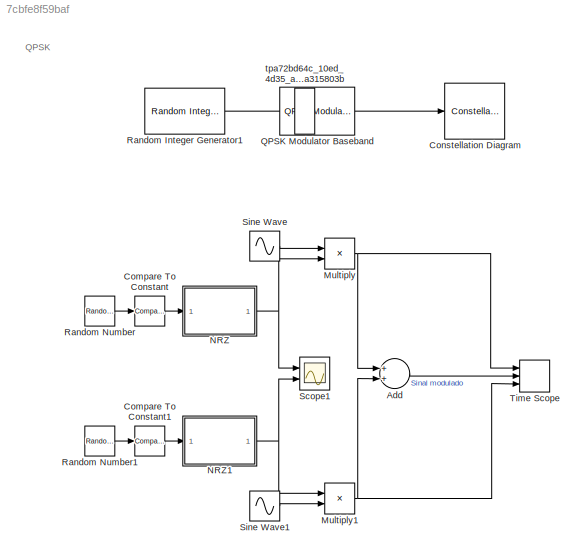
MODEL slx_7cbfe8f59baf
KIND model
CONFIG AbsTol = auto
CONFIG FixedStep = 1e-3
CONFIG MaxStep = auto
CONFIG MinStep = auto
CONFIG RelTol = 1e-3
CONFIG SampleTimeConstraint = Unconstrained
CONFIG Solver = ode3
CONFIG SolverMode = SingleTasking
CONFIG SolverName = ode3
CONFIG StartTime = 0.0
CONFIG StopTime = 1
BLOCK [Sum] Add
  InputSameDT = off
  OutDataTypeStr = Inherit: Inherit via internal rule
  Ports = [2, 1]
  SaturateOnIntegerOverflow = off
BLOCK [Reference] Compare To Constant  REF=simulink/Logic and Bit
Operations/Compare
To Constant
  OutDataTypeStr = boolean
  Ports = [1, 1]
  SourceBlock = simulink/Logic and Bit\nOperations/Compare\nTo Constant
  SourceType = Compare To Constant
  ZeroCross = on
  const = 0.5
  relop = <=
BLOCK [Reference] Compare To Constant1  REF=simulink/Logic and Bit
Operations/Compare
To Constant
  OutDataTypeStr = boolean
  Ports = [1, 1]
  SourceBlock = simulink/Logic and Bit\nOperations/Compare\nTo Constant
  SourceType = Compare To Constant
  ZeroCross = on
  const = 0.5
  relop = <=
BLOCK [ConstellationDiagram] Constellation Diagram
  Ports = [1]
  ScopeSpecificationString = comm.scopes.ConstellationDiagramBlockCfg('CurrentConfiguration', extmgr.ConfigurationSet(extmgr.Configuration('Core','General UI',true),extmgr.Configuration('Core','Source UI',true),extmgr.Configuration('Sources','WiredSimulink',true),extmgr.Configuration('Visuals','Constellation',true,'AxesProperties',struct('Color',[0 0 0],'XColor',[0.686274509803922 0.686274509803922 0.686274509803922],'YColor'...<+740ch>
BLOCK [Product] Multiply
  InputSameDT = off
  OutDataTypeStr = Inherit: Inherit via internal rule
  Ports = [2, 1]
  RndMeth = Floor
  SaturateOnIntegerOverflow = off
BLOCK [Product] Multiply1
  InputSameDT = off
  OutDataTypeStr = Inherit: Inherit via internal rule
  Ports = [2, 1]
  RndMeth = Floor
  SaturateOnIntegerOverflow = off
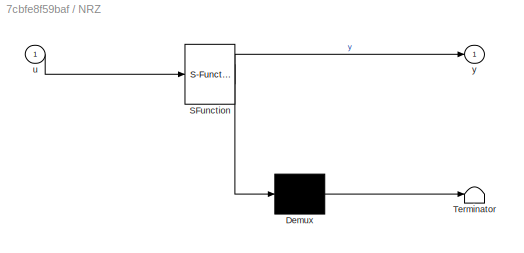
BLOCK [SubSystem] NRZ
  ErrorFcn = Stateflow.Translate.translate
  PermitHierarchicalResolution = ParametersOnly
  Ports = [1, 1]
  RequestExecContextInheritance = off
  SFBlockType = MATLAB Function
  TreatAsAtomicUnit = on
BLOCK [Demux] NRZ/ Demux 
  Outputs = 1
  Ports = [1, 1]
BLOCK [S-Function] NRZ/ SFunction 
  EnableBusSupport = on
  FunctionName = sf_sfun
  PortCounts = [1 2]
  Ports = [1, 2]
  SFunctionDeploymentMode = off
  Tag = Stateflow S-Function QPSK 2
BLOCK [Terminator] NRZ/ Terminator 
BLOCK [Inport] NRZ/u
  IconDisplay = Port number
BLOCK [Outport] NRZ/y
  IconDisplay = Port number
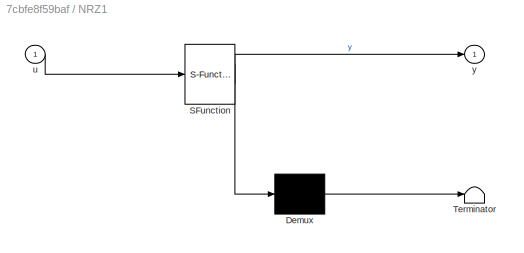
BLOCK [SubSystem] NRZ1
  ErrorFcn = Stateflow.Translate.translate
  PermitHierarchicalResolution = ParametersOnly
  Ports = [1, 1]
  RequestExecContextInheritance = off
  SFBlockType = MATLAB Function
  TreatAsAtomicUnit = on
BLOCK [Demux] NRZ1/ Demux 
  Outputs = 1
  Ports = [1, 1]
BLOCK [S-Function] NRZ1/ SFunction 
  EnableBusSupport = on
  FunctionName = sf_sfun
  PortCounts = [1 2]
  Ports = [1, 2]
  SFunctionDeploymentMode = off
  Tag = Stateflow S-Function QPSK 1
BLOCK [Terminator] NRZ1/ Terminator 
BLOCK [Inport] NRZ1/u
  IconDisplay = Port number
BLOCK [Outport] NRZ1/y
  IconDisplay = Port number
BLOCK [Reference] QPSK Modulator Baseband  REF=commdigbbndpm3/QPSK
Modulator
Baseband
  Enc = Gray
  InType = Integer
  Ph = pi/4
  Ports = [1, 1]
  SourceBlock = commdigbbndpm3/QPSK\nModulator\nBaseband
  SourceType = QPSK Modulator Baseband
  outDtype = double
  outFracLen = 15
  outFracLenMode = Best precision
  outUDDataType = sfix(16)
  outWordLen = 16
BLOCK [Reference] Random Integer Generator1  REF=commrandsrc2/Random Integer
Generator
  Ports = [0, 1]
  SourceBlock = commrandsrc2/Random Integer\nGenerator
  Ts = 1
  frameBased = on
  mul = 4
  outDataType = double
  sampPerFrame = 10000
  seed = 0
BLOCK [RandomNumber] Random Number
  Mean = 0.5
  SampleTime = 0.1
BLOCK [RandomNumber] Random Number1
  Mean = 0.5
  SampleTime = 0.1
  Seed = 10
BLOCK [Scope] Scope1
  DataFormat = StructureWithTime
  Decimation = 1
  Floating = off
  Grid = on
  LimitDataPoints = off
  MaxDataPoints = 5000
  NumInputPorts = 2
  Ports = [2]
  SampleInput = off
  SampleTime = -1
  SaveName = ScopeData
  SaveToWorkspace = off
  ShowLegends = off
  TickLabels = OneTimeTick
  TimeRange = auto
  YMax = 1.25~1.25
  YMin = -1.25~-1.25
  ZoomMode = on
BLOCK [Sin] Sine Wave
  Amplitude = 2
  Frequency = 500
  Ports = [0, 1]
  SampleTime = 0
BLOCK [Sin] Sine Wave1
  Amplitude = 2
  Frequency = 500
  Phase = 90*pi/180
  Ports = [0, 1]
  SampleTime = 0
BLOCK [TimeScope] Time Scope
  DefaultConfigurationName = spbscopes.TimeScopeBlockCfg
  Floating = off
  NumInputPorts = 3
  Ports = [3]
  ScopeSpecificationString = spbscopes.TimeScopeBlockCfg('CurrentConfiguration', extmgr.ConfigurationSet(extmgr.Configuration('Core','General UI',true,'FigureColor',[0.156862745098039 0.156862745098039 0.156862745098039]),extmgr.Configuration('Core','Source UI',true),extmgr.Configuration('Sources','WiredSimulink',true,'DataLoggingVariableName','ScopeData1'),extmgr.Configuration('Visuals','Time Domain',true,'DisplayLayoutDimen...<+2881ch>
  UserDataPersistent = on
BLOCK [FrameConversion] tpa72bd64c_10ed_4d35_a9ab_2595a315803b
  OutFrame = Sample-based
  Ports = [1, 1]
ANNOTATION (root): QPSK
LINE Add:1 -> Time Scope:2
LINE Compare To Constant1:1 -> NRZ1:1
LINE Compare To Constant:1 -> NRZ:1
NET Multiply1:1 -> Add:2, Time Scope:3
NET Multiply:1 -> Add:1, Time Scope:1
NET NRZ1:1 -> Multiply1:1, Scope1:2
NET NRZ:1 -> Multiply:2, Scope1:1
LINE QPSK Modulator Baseband:1 -> Constellation Diagram:1
LINE Random Integer Generator1:1 -> tpa72bd64c_10ed_4d35_a9ab_2595a315803b:1
LINE Random Number1:1 -> Compare To Constant1:1
LINE Random Number:1 -> Compare To Constant:1
LINE Sine Wave1:1 -> Multiply1:2
LINE Sine Wave:1 -> Multiply:1
LINE tpa72bd64c_10ed_4d35_a9ab_2595a315803b:1 -> QPSK Modulator Baseband:1
note: NET lines group one-source signal fan-out (src -> all destinations, sorted); 1:1 wires keep LINE
CHART NRZ1 states=1 transitions=1
  STATE_LABEL 'eML_blk_kernel()'
  STATE_LABEL 'SCRIPT:\nfunction y = fcn(u)\nif u == 1\n    y = 1;\nelse\n    y = -1;\nend\nend\n'
CHART NRZ states=1 transitions=1
  STATE_LABEL 'eML_blk_kernel()'
  STATE_LABEL 'SCRIPT:\nfunction y = fcn(u)\nif u == 1\n    y = 1;\nelse\n    y = -1;\nend\nend\n'
